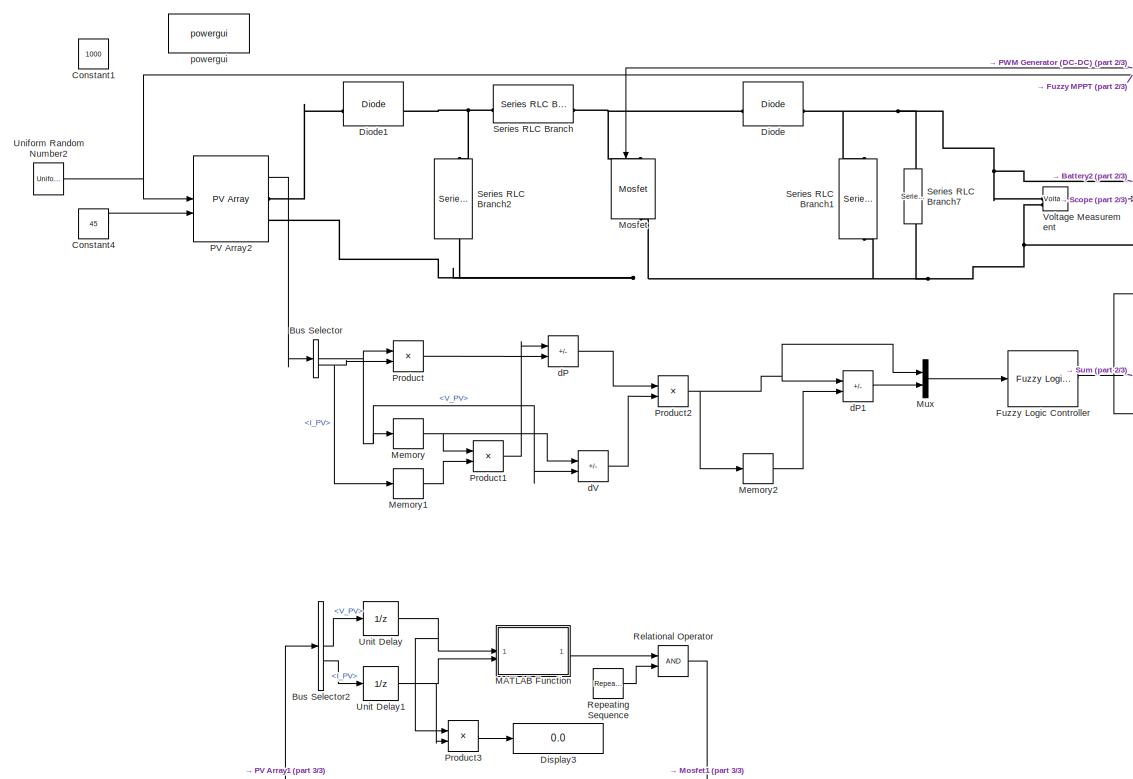
[diagram: root canvas - part 1/3, left side, full height]
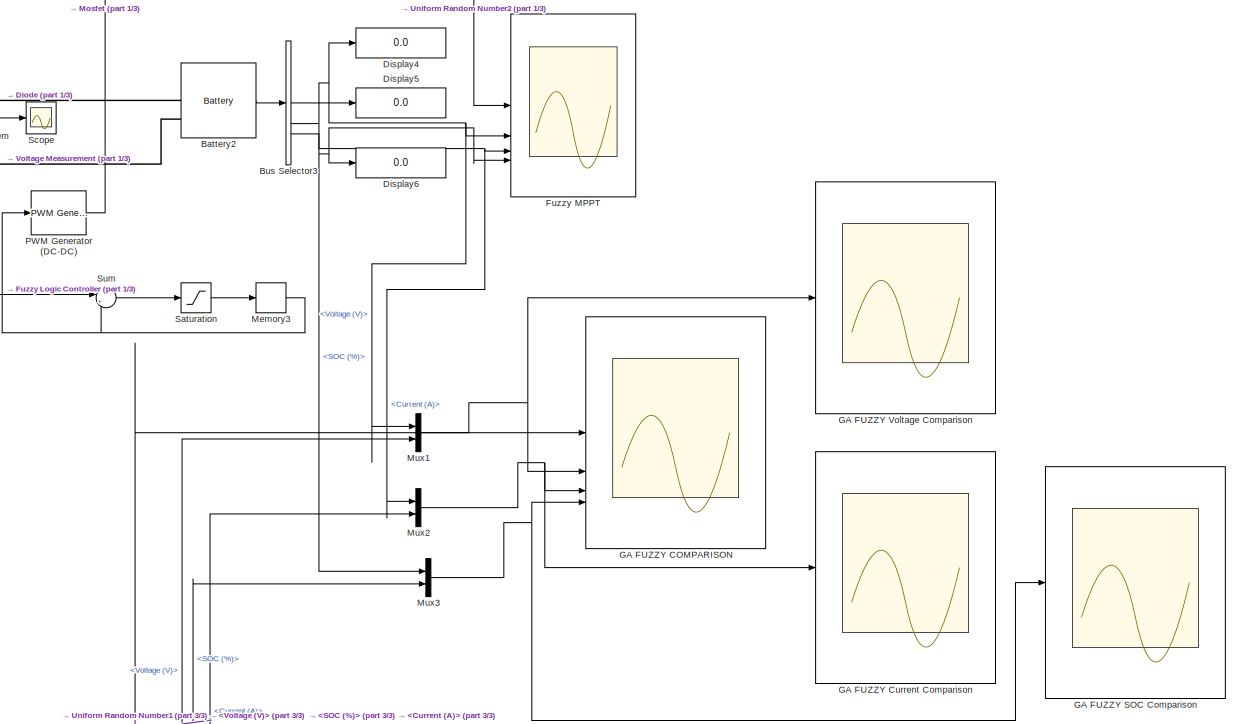
[diagram: root canvas - part 2/3, middle right region]
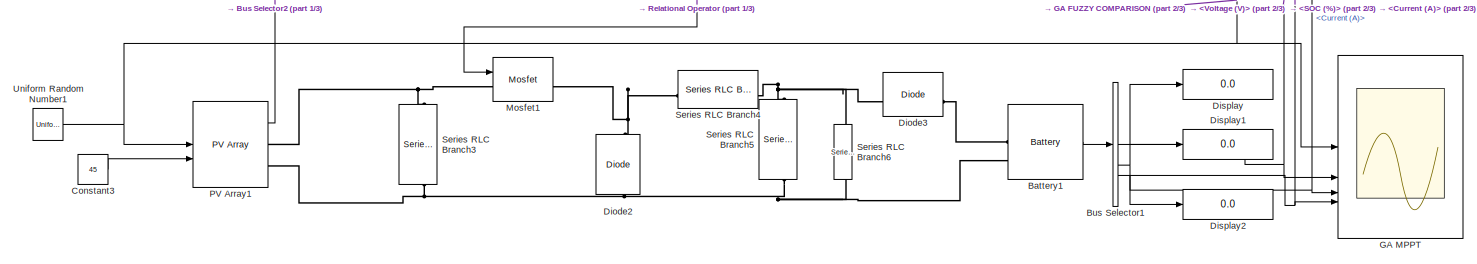
[diagram: root canvas - part 3/3, bottom left region]
MODEL slx_6afb05b403b7
KIND model
CONFIG AbsTol = auto
CONFIG EnableMultiTasking = off
CONFIG FixedStep = auto
CONFIG MaxStep = auto
CONFIG MinStep = auto
CONFIG RelTol = 1e-3
CONFIG SampleTimeConstraint = Unconstrained
CONFIG SolverName = VariableStepAuto
CONFIG StartTime = 0.0
CONFIG StopTime = 20
BLOCK [Reference] Battery1  REF=spsBatteryLib/Battery
  LibrarySourceBlock = sps_lib/Sources/Battery
  SourceBlock = spsBatteryLib/Battery
  SourceType = Battery
BLOCK [Reference] Battery2  REF=spsBatteryLib/Battery
  LibrarySourceBlock = sps_lib/Sources/Battery
  SourceBlock = spsBatteryLib/Battery
  SourceType = Battery
BLOCK [BusSelector] Bus Selector
  OutputSignals = V_PV,I_PV
BLOCK [BusSelector] Bus Selector1
  OutputSignals = Voltage (V),Current (A),SOC (%)
BLOCK [BusSelector] Bus Selector2
  OutputSignals = V_PV,I_PV
BLOCK [BusSelector] Bus Selector3
  OutputSignals = Voltage (V),Current (A),SOC (%)
BLOCK [Constant] Constant1
  Value = 1000
BLOCK [Constant] Constant3
  Value = 45
BLOCK [Constant] Constant4
  Value = 45
BLOCK [Reference] Diode  REF=spsDiodeLib/Diode
  LibrarySourceBlock = sps_lib/Power Electronics/Diode
  SourceBlock = spsDiodeLib/Diode
  SourceType = Diode
BLOCK [Reference] Diode1  REF=spsDiodeLib/Diode
  LibrarySourceBlock = sps_lib/Power Electronics/Diode
  SourceBlock = spsDiodeLib/Diode
  SourceType = Diode
BLOCK [Reference] Diode2  REF=spsDiodeLib/Diode
  LibrarySourceBlock = sps_lib/Power Electronics/Diode
  NameLocation = right
  SourceBlock = spsDiodeLib/Diode
  SourceType = Diode
BLOCK [Reference] Diode3  REF=spsDiodeLib/Diode
  LibrarySourceBlock = sps_lib/Power Electronics/Diode
  SourceBlock = spsDiodeLib/Diode
  SourceType = Diode
BLOCK [Display] Display
  Decimation = 1
BLOCK [Display] Display1
  Decimation = 1
BLOCK [Display] Display2
  Decimation = 1
BLOCK [Display] Display3
  Decimation = 1
BLOCK [Display] Display4
  Decimation = 1
BLOCK [Display] Display5
  Decimation = 1
BLOCK [Display] Display6
  Decimation = 1
BLOCK [Reference] Fuzzy Logic Controller  REF=fuzblock/Fuzzy Logic   (lib defined in mdl_858b3b3e7478)
Controller
  SourceBlock = fuzblock/Fuzzy Logic \nController
  SourceType = Fuzzy Inference System
BLOCK [Scope] Fuzzy MPPT
  Floating = off
  NumInputPorts = 4
  ScopeSpecificationString = Simulink.scopes.TimeScopeBlockCfg('CurrentConfiguration', extmgr.ConfigurationSet(extmgr.Configuration('Core','General UI',true),extmgr.Configuration('Core','Source UI',true),extmgr.Configuration('Sources','WiredSimulink',true,'DataLoggingVariableName','ScopeData2'),extmgr.Configuration('Visuals','Time Domain',true,'SerializedDisplays',{struct('MinYLimReal','375.0646','MaxYLimReal','890.00776','YL...<+3873ch>
BLOCK [Scope] GA FUZZY COMPARISON
  Floating = off
  NumInputPorts = 4
  ScopeSpecificationString = Simulink.scopes.TimeScopeBlockCfg('CurrentConfiguration', extmgr.ConfigurationSet(extmgr.Configuration('Core','General UI',true),extmgr.Configuration('Core','Source UI',true),extmgr.Configuration('Sources','WiredSimulink',true,'DataLoggingVariableName','ScopeData1'),extmgr.Configuration('Visuals','Time Domain',true,'SerializedDisplays',{struct('MinYLimReal','132.86204','MaxYLimReal','1013.89976','...<+4183ch>
BLOCK [Scope] GA FUZZY Current Comparison
  Floating = off
  NumInputPorts = 1
  ScopeSpecificationString = Simulink.scopes.TimeScopeBlockCfg('CurrentConfiguration', extmgr.ConfigurationSet(extmgr.Configuration('Core','General UI',true),extmgr.Configuration('Core','Source UI',true),extmgr.Configuration('Sources','WiredSimulink',true,'DataLoggingVariableName','ScopeData2'),extmgr.Configuration('Visuals','Time Domain',true,'SerializedDisplays',{struct('MinYLimReal','-24.63383','MaxYLimReal','32.65101','YL...<+1748ch>
BLOCK [Scope] GA FUZZY SOC Comparison
  Floating = off
  NumInputPorts = 1
  ScopeSpecificationString = Simulink.scopes.TimeScopeBlockCfg('CurrentConfiguration', extmgr.ConfigurationSet(extmgr.Configuration('Core','General UI',true),extmgr.Configuration('Core','Source UI',true),extmgr.Configuration('Sources','WiredSimulink',true,'DataLoggingVariableName','ScopeData3'),extmgr.Configuration('Visuals','Time Domain',true,'SerializedDisplays',{struct('MinYLimReal','59.98001','MaxYLimReal','60.17968','YLa...<+1783ch>
BLOCK [Scope] GA FUZZY Voltage Comparison
  Floating = off
  NumInputPorts = 1
  ScopeSpecificationString = Simulink.scopes.TimeScopeBlockCfg('CurrentConfiguration', extmgr.ConfigurationSet(extmgr.Configuration('Core','General UI',true),extmgr.Configuration('Core','Source UI',true),extmgr.Configuration('Sources','WiredSimulink',true,'DataLoggingVariableName','ScopeData1'),extmgr.Configuration('Visuals','Time Domain',true,'SerializedDisplays',{struct('MinYLimReal','11.9','MaxYLimReal','13.1','YLabelReal'...<+1730ch>
BLOCK [Scope] GA MPPT
  Floating = off
  NumInputPorts = 4
  ScopeSpecificationString = Simulink.scopes.TimeScopeBlockCfg('CurrentConfiguration', extmgr.ConfigurationSet(extmgr.Configuration('Core','General UI',true),extmgr.Configuration('Core','Source UI',true),extmgr.Configuration('Sources','WiredSimulink',true,'DataLoggingVariableName','ScopeData1'),extmgr.Configuration('Visuals','Time Domain',true,'SerializedDisplays',{struct('MinYLimReal','326.55892','MaxYLimReal','526.55892','Y...<+3873ch>
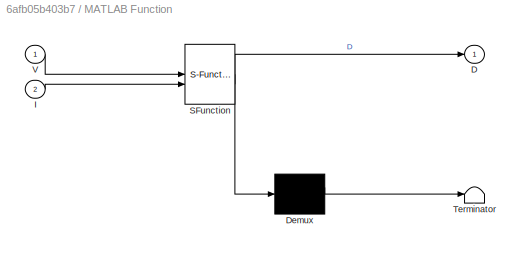
BLOCK [SubSystem] MATLAB Function
  ErrorFcn = Stateflow.Translate.translate
  PermitHierarchicalResolution = ExplicitOnly
  SFBlockType = MATLAB Function
  TreatAsAtomicUnit = on
BLOCK [Demux] MATLAB Function/ Demux 
  Outputs = 1
BLOCK [S-Function] MATLAB Function/ SFunction 
  EnableBusSupport = on
  FunctionName = sf_sfun
  PortCounts = [2 2]
  SFcnIsStateOwnerBlock = off
  SFunctionDeploymentMode = off
  Tag = Stateflow S-Function 2
BLOCK [Terminator] MATLAB Function/ Terminator 
BLOCK [Outport] MATLAB Function/D
BLOCK [Inport] MATLAB Function/I
  Port = 2
BLOCK [Inport] MATLAB Function/V
BLOCK [Memory] Memory
BLOCK [Memory] Memory1
BLOCK [Memory] Memory2
BLOCK [Memory] Memory3
BLOCK [Reference] Mosfet  REF=spsMosfetLib/Mosfet
  LibrarySourceBlock = sps_lib/Power Electronics/Mosfet
  NameLocation = left
  SourceBlock = spsMosfetLib/Mosfet
  SourceType = Mosfet
BLOCK [Reference] Mosfet1  REF=spsMosfetLib/Mosfet
  LibrarySourceBlock = sps_lib/Power Electronics/Mosfet
  SourceBlock = spsMosfetLib/Mosfet
  SourceType = Mosfet
BLOCK [Mux] Mux
  DisplayOption = bar
  Inputs = 2
BLOCK [Mux] Mux1
  DisplayOption = bar
  Inputs = 2
BLOCK [Mux] Mux2
  DisplayOption = bar
  Inputs = 2
BLOCK [Mux] Mux3
  DisplayOption = bar
  Inputs = 2
BLOCK [Reference] PV Array1  REF=spsPVArrayLib/PV Array
  LibrarySourceBlock = sps_lib/Sources/PV Array
  SourceBlock = spsPVArrayLib/PV Array
  SourceType = PV array
BLOCK [Reference] PV Array2  REF=spsPVArrayLib/PV Array
  LibrarySourceBlock = sps_lib/Sources/PV Array
  SourceBlock = spsPVArrayLib/PV Array
  SourceType = PV array
BLOCK [Reference] PWM Generator (DC-DC)  REF=spsPWMGeneratorDCDCLib/PWM Generator
(DC-DC)
  LibrarySourceBlock = sps_lib/Power Electronics/Power Electronics Control/PWM Generator\n(DC-DC)
  SourceBlock = spsPWMGeneratorDCDCLib/PWM Generator\n(DC-DC)
  SourceType = PWM Generator (DC-DC)
BLOCK [Product] Product
BLOCK [Product] Product1
BLOCK [Product] Product2
  Inputs = /*
BLOCK [Product] Product3
BLOCK [RelationalOperator] Relational Operator
  InputSameDT = off
  OutDataTypeStr = boolean
  RndMeth = Simplest
BLOCK [Reference] Repeating Sequence  REF=simulink/Sources/Repeating
Sequence
  SourceBlock = simulink/Sources/Repeating\nSequence
  SourceType = Repeating table
BLOCK [Saturate] Saturation
BLOCK [Scope] Scope
  Floating = off
  NumInputPorts = 1
  ScopeSpecificationString = Simulink.scopes.TimeScopeBlockCfg('CurrentConfiguration', extmgr.ConfigurationSet(extmgr.Configuration('Core','General UI',true),extmgr.Configuration('Core','Source UI',true),extmgr.Configuration('Sources','WiredSimulink',true),extmgr.Configuration('Visuals','Time Domain',true,'SerializedDisplays',{struct('MinYLimReal','-4.47524','MaxYLimReal','40.27754','YLabelReal','','MinYLimMag','0.00000','Max...<+1502ch>
BLOCK [Reference] Series RLC Branch  REF=spsSeriesRLCBranchLib/Series RLC Branch
  LibrarySourceBlock = sps_lib/Passives/Series RLC Branch
  SourceBlock = spsSeriesRLCBranchLib/Series RLC Branch
  SourceType = Series RLC Branch
BLOCK [Reference] Series RLC Branch1  REF=spsSeriesRLCBranchLib/Series RLC Branch
  LibrarySourceBlock = sps_lib/Passives/Series RLC Branch
  NameLocation = left
  SourceBlock = spsSeriesRLCBranchLib/Series RLC Branch
  SourceType = Series RLC Branch
BLOCK [Reference] Series RLC Branch2  REF=spsSeriesRLCBranchLib/Series RLC Branch
  LibrarySourceBlock = sps_lib/Passives/Series RLC Branch
  NameLocation = left
  SourceBlock = spsSeriesRLCBranchLib/Series RLC Branch
  SourceType = Series RLC Branch
BLOCK [Reference] Series RLC Branch3  REF=spsSeriesRLCBranchLib/Series RLC Branch
  LibrarySourceBlock = sps_lib/Passives/Series RLC Branch
  NameLocation = left
  SourceBlock = spsSeriesRLCBranchLib/Series RLC Branch
  SourceType = Series RLC Branch
BLOCK [Reference] Series RLC Branch4  REF=spsSeriesRLCBranchLib/Series RLC Branch
  LibrarySourceBlock = sps_lib/Passives/Series RLC Branch
  SourceBlock = spsSeriesRLCBranchLib/Series RLC Branch
  SourceType = Series RLC Branch
BLOCK [Reference] Series RLC Branch5  REF=spsSeriesRLCBranchLib/Series RLC Branch
  LibrarySourceBlock = sps_lib/Passives/Series RLC Branch
  NameLocation = left
  SourceBlock = spsSeriesRLCBranchLib/Series RLC Branch
  SourceType = Series RLC Branch
BLOCK [Reference] Series RLC Branch6  REF=spsSeriesRLCBranchLib/Series RLC Branch
  LibrarySourceBlock = sps_lib/Passives/Series RLC Branch
  NameLocation = left
  SourceBlock = spsSeriesRLCBranchLib/Series RLC Branch
  SourceType = Series RLC Branch
BLOCK [Reference] Series RLC Branch7  REF=spsSeriesRLCBranchLib/Series RLC Branch
  LibrarySourceBlock = sps_lib/Passives/Series RLC Branch
  NameLocation = left
  SourceBlock = spsSeriesRLCBranchLib/Series RLC Branch
  SourceType = Series RLC Branch
BLOCK [Sum] Sum
  Inputs = |++
BLOCK [UniformRandomNumber] Uniform Random Number1
  Maximum = 1000
  Minimum = 20
  SampleTime = 1
  Seed = 342
BLOCK [UniformRandomNumber] Uniform Random Number2
  Maximum = 1000
  Minimum = 20
  SampleTime = 1
  Seed = 342
BLOCK [UnitDelay] Unit Delay
  HasFrameUpgradeWarning = on
  SampleTime = 1e-4
BLOCK [UnitDelay] Unit Delay1
  HasFrameUpgradeWarning = on
  SampleTime = 1e-4
BLOCK [Reference] Voltage Measurement  REF=spsVoltageMeasurementLib/Voltage Measurement
  LibrarySourceBlock = sps_lib/Sensors and Measurements/Voltage Measurement
  SourceBlock = spsVoltageMeasurementLib/Voltage Measurement
  SourceType = Voltage Measurement
  UserDataPersistent = on
BLOCK [Sum] dP
  IconShape = rectangular
  Inputs = +-
BLOCK [Sum] dP1
  IconShape = rectangular
  Inputs = +-
BLOCK [Sum] dV
  IconShape = rectangular
  Inputs = +-
BLOCK [Reference] powergui  REF=sps_lib/powergui
  LibrarySourceBlock = sps_lib/powergui
  Priority = 1
  SourceBlock = sps_lib/powergui
  SourceType = PSB option menu block
LINE Battery1:1 -> Bus Selector1:1
LINE Battery2:1 -> Bus Selector3:1
NET Bus Selector1:1 -> Display:1, GA MPPT:2, Mux1:2
NET Bus Selector1:2 -> Display1:1, GA MPPT:3, Mux2:2
NET Bus Selector1:3 -> Display2:1, GA MPPT:4, Mux3:2
LINE Bus Selector2:1 -> Unit Delay:1
LINE Bus Selector2:2 -> Unit Delay1:1
NET Bus Selector3:1 -> Display4:1, Fuzzy MPPT:2, Mux1:1
NET Bus Selector3:2 -> Display5:1, Fuzzy MPPT:3, Mux2:1
NET Bus Selector3:3 -> Display6:1, Fuzzy MPPT:4, Mux3:1
NET Bus Selector:1 -> Memory:1, Product:1, dV:2
NET Bus Selector:2 -> Memory1:1, Product:2
LINE Constant3:1 -> PV Array1:2
LINE Constant4:1 -> PV Array2:2
LINE Fuzzy Logic Controller:1 -> Sum:1
LINE MATLAB Function:1 -> Relational Operator:1
LINE Memory1:1 -> Product1:2
LINE Memory2:1 -> dP1:2
NET Memory3:1 -> PWM Generator (DC-DC):1, Sum:2
NET Memory:1 -> Product1:1, dV:1
NET Mux1:1 -> GA FUZZY COMPARISON:2, GA FUZZY Voltage Comparison:1
NET Mux2:1 -> GA FUZZY COMPARISON:3, GA FUZZY Current Comparison:1
NET Mux3:1 -> GA FUZZY COMPARISON:4, GA FUZZY SOC Comparison:1
LINE Mux:1 -> Fuzzy Logic Controller:1
LINE PV Array1:1 -> Bus Selector2:1
LINE PV Array2:1 -> Bus Selector:1
LINE PWM Generator (DC-DC):1 -> Mosfet:1
LINE Product1:1 -> dP:1
NET Product2:1 -> Memory2:1, Mux:1, dP1:1
LINE Product3:1 -> Display3:1
LINE Product:1 -> dP:2
LINE Relational Operator:1 -> Mosfet1:1
LINE Repeating Sequence:1 -> Relational Operator:2
LINE Saturation:1 -> Memory3:1
LINE Sum:1 -> Saturation:1
NET Uniform Random Number1:1 -> GA FUZZY COMPARISON:1, GA MPPT:1, PV Array1:1
NET Uniform Random Number2:1 -> Fuzzy MPPT:1, PV Array2:1
NET Unit Delay1:1 -> MATLAB Function:2, Product3:2
NET Unit Delay:1 -> MATLAB Function:1, Product3:1
LINE Voltage Measurement:1 -> Scope:1
LINE dP1:1 -> Mux:2
LINE dP:1 -> Product2:1
LINE dV:1 -> Product2:2
PLINE Battery1:LConn1 -- Diode3:RConn1
PNET net1: Battery1:LConn2 -- Diode2:LConn1 -- PV Array1:RConn2 -- Series RLC Branch3:RConn1 -- Series RLC Branch5:RConn1 -- Series RLC Branch6:RConn1
PNET net2: Battery2:LConn1 -- Diode:RConn1 -- Series RLC Branch1:LConn1 -- Series RLC Branch7:LConn1 -- Voltage Measurement:LConn1
PNET net3: Battery2:LConn2 -- Mosfet:RConn1 -- PV Array2:RConn2 -- Series RLC Branch1:RConn1 -- Series RLC Branch2:RConn1 -- Series RLC Branch7:RConn1 -- Voltage Measurement:LConn2
PLINE Diode1:LConn1 -- PV Array2:RConn1
PNET net4: Diode1:RConn1 -- Series RLC Branch2:LConn1 -- Series RLC Branch:LConn1
PNET net5: Diode2:RConn1 -- Mosfet1:RConn1 -- Series RLC Branch4:LConn1
PNET net6: Diode3:LConn1 -- Series RLC Branch4:RConn1 -- Series RLC Branch5:LConn1 -- Series RLC Branch6:LConn1
PNET net7: Diode:LConn1 -- Mosfet:LConn1 -- Series RLC Branch:RConn1
PNET net8: Mosfet1:LConn1 -- PV Array1:RConn1 -- Series RLC Branch3:LConn1
note: NET lines group one-source signal fan-out (src -> all destinations, sorted); 1:1 wires keep LINE; PNET lines group multi-terminal physical nets as a canonical sorted terminal list (undirected conserving connections); 2-terminal nets keep the pairwise PLINE form
CHART MATLAB Function states=1 transitions=1
  STATE_LABEL 'eML_blk_kernel()'
  STATE_LABEL "SCRIPT:\nfunction D = GA_MPPT(V, I)\n%#codegen\n% GA_MPPT - Maximum Power Point Tracking using Genetic Algorithm\n% Input: V (tegangan), I (arus)\n% Output: D (duty cycle optimal, skalar double)\n\npersistent Population Fitness Elite Pop_size Max_iterations t ...\n    pc pm LB UB dim convergence_count prev_best last_D\n\n% Deklarasikan ukuran maksimum untuk variabel persisten\ncoder.varsize('Population', [10...<+3608ch>"
CHART  states=0 transitions=0
